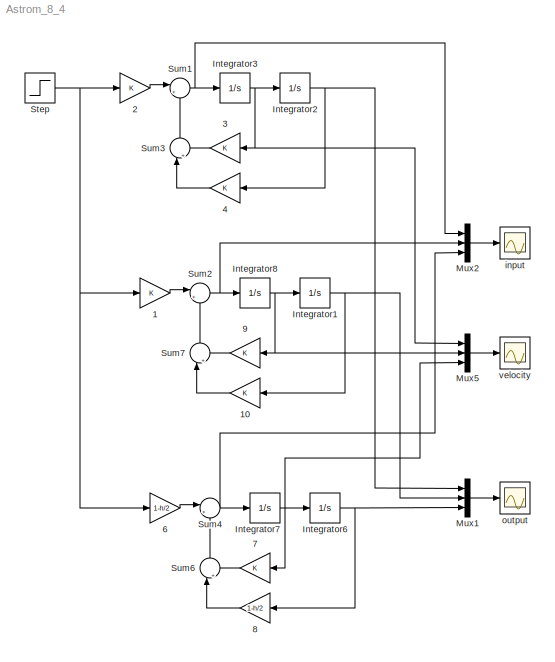
MODEL Astrom_8_4
KIND model
BLOCK [Gain] 1
  OutDataTypeMode = Inherit via internal rule
  ParameterDataTypeMode = Inherit via internal rule
  SaturateOnIntegerOverflow = off
BLOCK [Gain] 10
  OutDataTypeMode = Inherit via internal rule
  ParameterDataTypeMode = Inherit via internal rule
  SampleTime = h
  SaturateOnIntegerOverflow = off
BLOCK [Gain] 2
  OutDataTypeMode = Inherit via internal rule
  ParameterDataTypeMode = Inherit via internal rule
  SaturateOnIntegerOverflow = off
BLOCK [Gain] 3
  OutDataTypeMode = Inherit via internal rule
  ParameterDataTypeMode = Inherit via internal rule
  SaturateOnIntegerOverflow = off
BLOCK [Gain] 4
  OutDataTypeMode = Inherit via internal rule
  ParameterDataTypeMode = Inherit via internal rule
  SaturateOnIntegerOverflow = off
BLOCK [Gain] 6
  Gain = 1-h/2
  OutDataTypeMode = Inherit via internal rule
  ParameterDataTypeMode = Inherit via internal rule
  SaturateOnIntegerOverflow = off
BLOCK [Gain] 7
  OutDataTypeMode = Inherit via internal rule
  ParameterDataTypeMode = Inherit via internal rule
  SampleTime = h
  SaturateOnIntegerOverflow = off
BLOCK [Gain] 8
  Gain = 1-h/2
  OutDataTypeMode = Inherit via internal rule
  ParameterDataTypeMode = Inherit via internal rule
  SampleTime = h
  SaturateOnIntegerOverflow = off
BLOCK [Gain] 9
  OutDataTypeMode = Inherit via internal rule
  ParameterDataTypeMode = Inherit via internal rule
  SampleTime = h
  SaturateOnIntegerOverflow = off
BLOCK [Integrator] Integrator1
  IgnoreLimit = off
  Ports = [1, 1]
BLOCK [Integrator] Integrator2
  IgnoreLimit = off
  Ports = [1, 1]
BLOCK [Integrator] Integrator3
  IgnoreLimit = off
  Ports = [1, 1]
BLOCK [Integrator] Integrator6
  IgnoreLimit = off
  Ports = [1, 1]
BLOCK [Integrator] Integrator7
  IgnoreLimit = off
  Ports = [1, 1]
BLOCK [Integrator] Integrator8
  IgnoreLimit = off
  Ports = [1, 1]
BLOCK [Mux] Mux1
  DisplayOption = bar
  Inputs = 3
  Ports = [3, 1]
BLOCK [Mux] Mux2
  DisplayOption = bar
  Inputs = 3
  Ports = [3, 1]
BLOCK [Mux] Mux5
  DisplayOption = bar
  Inputs = 3
  Ports = [3, 1]
BLOCK [Step] Step
  SampleTime = 0
  Time = 0
BLOCK [Sum] Sum1
  CollapseMode = All dimensions
  IconShape = round
  InputSameDT = off
  Inputs = |+-
  OutDataTypeMode = Inherit via internal rule
  Ports = [2, 1]
  SaturateOnIntegerOverflow = off
BLOCK [Sum] Sum2
  CollapseMode = All dimensions
  IconShape = round
  InputSameDT = off
  Inputs = |+-
  OutDataTypeMode = Inherit via internal rule
  Ports = [2, 1]
  SaturateOnIntegerOverflow = off
BLOCK [Sum] Sum3
  CollapseMode = All dimensions
  IconShape = round
  InputSameDT = off
  Inputs = |++
  OutDataTypeMode = Inherit via internal rule
  Ports = [2, 1]
  SaturateOnIntegerOverflow = off
BLOCK [Sum] Sum4
  CollapseMode = All dimensions
  IconShape = round
  InputSameDT = off
  Inputs = |+-
  OutDataTypeMode = Inherit via internal rule
  Ports = [2, 1]
  SaturateOnIntegerOverflow = off
BLOCK [Sum] Sum6
  CollapseMode = All dimensions
  IconShape = round
  InputSameDT = off
  Inputs = |++
  OutDataTypeMode = Inherit via internal rule
  Ports = [2, 1]
  SaturateOnIntegerOverflow = off
BLOCK [Sum] Sum7
  CollapseMode = All dimensions
  IconShape = round
  InputSameDT = off
  Inputs = |++
  OutDataTypeMode = Inherit via internal rule
  Ports = [2, 1]
  SaturateOnIntegerOverflow = off
BLOCK [Scope] input
  DataFormat = StructureWithTime
  Floating = off
  NumInputPorts = 1
  Ports = [1]
  SampleTime = 0
  SaveName = ScopeData1
BLOCK [Scope] output
  DataFormat = StructureWithTime
  Floating = off
  NumInputPorts = 1
  Ports = [1]
  SampleTime = 0
BLOCK [Scope] velocity
  DataFormat = StructureWithTime
  Floating = off
  NumInputPorts = 1
  Ports = [1]
  SampleTime = 0
  SaveName = ScopeData5
LINE 10:1 -> Sum7:1
LINE 1:1 -> Sum2:1
LINE 2:1 -> Sum1:1
LINE 3:1 -> Sum3:2
LINE 4:1 -> Sum3:1
LINE 6:1 -> Sum4:1
LINE 7:1 -> Sum6:2
LINE 8:1 -> Sum6:1
LINE 9:1 -> Sum7:2
NET Integrator1:1 -> 10:1, Mux1:2
NET Integrator2:1 -> 4:1, Mux1:1
NET Integrator3:1 -> 3:1, Integrator2:1, Mux5:1
NET Integrator6:1 -> 8:1, Mux1:3
NET Integrator7:1 -> 7:1, Integrator6:1, Mux5:3
NET Integrator8:1 -> 9:1, Integrator1:1, Mux5:2
LINE Mux1:1 -> output:1
LINE Mux2:1 -> input:1
LINE Mux5:1 -> velocity:1
NET Step:1 -> 1:1, 2:1, 6:1
NET Sum1:1 -> Integrator3:1, Mux2:1
NET Sum2:1 -> Integrator8:1, Mux2:2
LINE Sum3:1 -> Sum1:2
NET Sum4:1 -> Integrator7:1, Mux2:3
LINE Sum6:1 -> Sum4:2
LINE Sum7:1 -> Sum2:2
note: NET lines group one-source signal fan-out (src -> all destinations, sorted); 1:1 wires keep LINE
